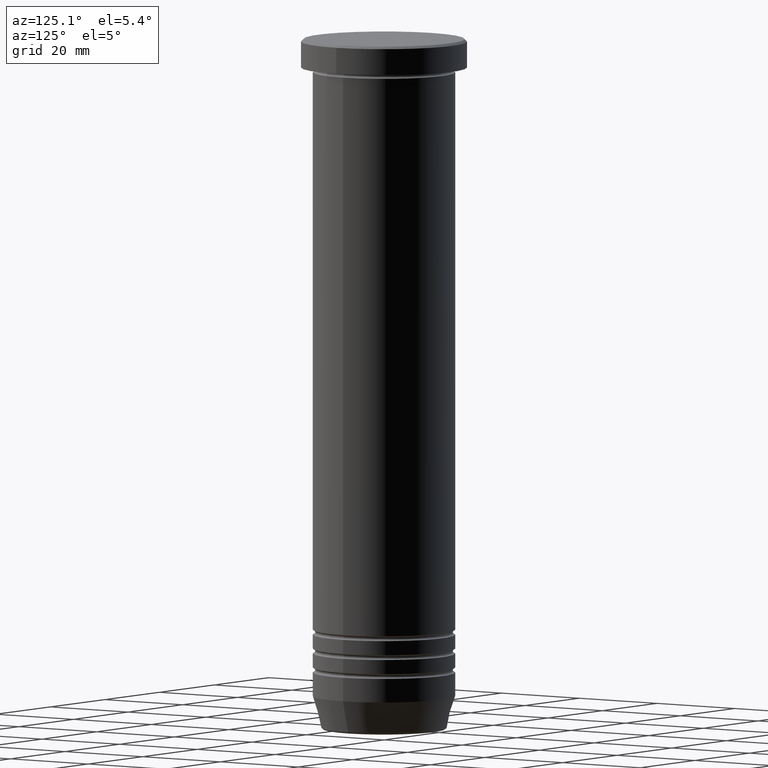
[diagram: clean part render]
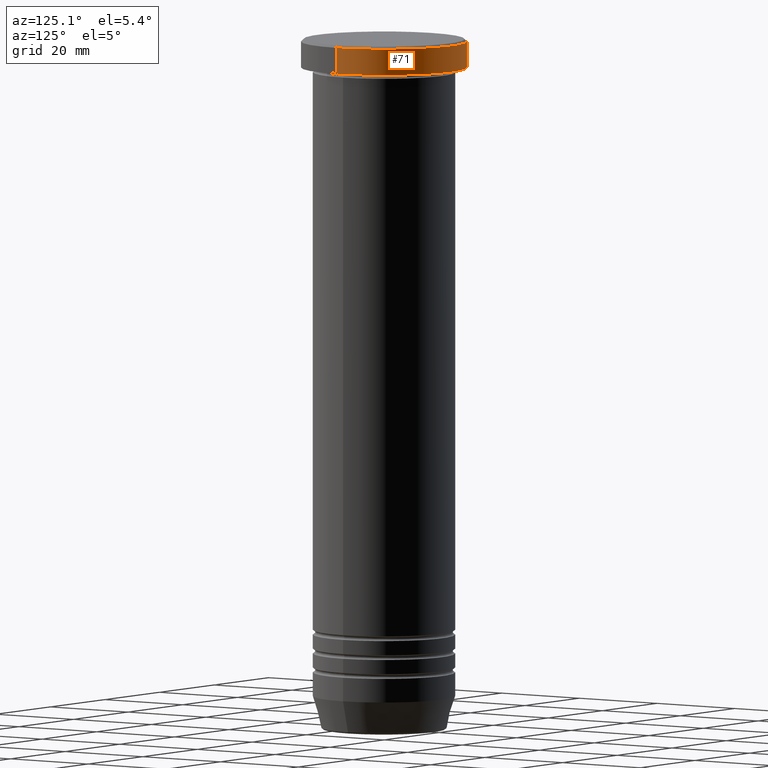
[diagram: same view with one face highlighted and labeled with its STEP entity id]
A machine part, auxiliary view. The second image highlights one B-rep face of the part: STEP entity #71.
In plain terms, the highlighted cylindrical surface (partial cylindrical patch) has radius 17.5 mm, axis along (-0, -0, 1).
Its self-contained STEP definition (entity closure, byte-faithful):
#22 = CARTESIAN_POINT ( 'NONE',  ( -17.50000000000000000, 2.143131898507868248E-15, 0.000000000000000000 ) ) ;
#71 = ADVANCED_FACE ( 'NONE', ( #669 ), #1103, .T. ) ;
#82 = CARTESIAN_POINT ( 'NONE',  ( 17.50000000000000000, 0.000000000000000000, -0.5000000000000073275 ) ) ;
#147 = DIRECTION ( 'NONE',  ( 1.000000000000000000, 0.000000000000000000, 0.000000000000000000 ) ) ;
#229 = VERTEX_POINT ( 'NONE', #380 ) ;
#274 = VERTEX_POINT ( 'NONE', #1081 ) ;
#313 = EDGE_CURVE ( 'NONE', #274, #1145, #826, .T. ) ;
#316 = CARTESIAN_POINT ( 'NONE',  ( 0.000000000000000000, 0.000000000000000000, -5.999999999999999112 ) ) ;
#327 = DIRECTION ( 'NONE',  ( 1.000000000000000000, 0.000000000000000000, 0.000000000000000000 ) ) ;
#363 = AXIS2_PLACEMENT_3D ( 'NONE', #589, #426, #147 ) ;
#364 = ORIENTED_EDGE ( 'NONE', *, *, #313, .T. ) ;
#380 = CARTESIAN_POINT ( 'NONE',  ( 17.50000000000000000, 0.000000000000000000, -5.999999999999999112 ) ) ;
#397 = ORIENTED_EDGE ( 'NONE', *, *, #692, .T. ) ;
#420 = VECTOR ( 'NONE', #834, 1000.000000000000000 ) ;
#426 = DIRECTION ( 'NONE',  ( -0.000000000000000000, -0.000000000000000000, 1.000000000000000000 ) ) ;
#455 = EDGE_CURVE ( 'NONE', #1145, #996, #568, .T. ) ;
#473 = VECTOR ( 'NONE', #738, 1000.000000000000000 ) ;
#530 = AXIS2_PLACEMENT_3D ( 'NONE', #316, #1099, #327 ) ;
#548 = AXIS2_PLACEMENT_3D ( 'NONE', #865, #960, #1035 ) ;
#568 = CIRCLE ( 'NONE', #548, 17.50000000000000000 ) ;
#587 = ORIENTED_EDGE ( 'NONE', *, *, #639, .F. ) ;
#589 = CARTESIAN_POINT ( 'NONE',  ( 0.000000000000000000, 0.000000000000000000, 0.000000000000000000 ) ) ;
#639 = EDGE_CURVE ( 'NONE', #229, #996, #816, .T. ) ;
#669 = FACE_OUTER_BOUND ( 'NONE', #732, .T. ) ;
#692 = EDGE_CURVE ( 'NONE', #229, #274, #1073, .T. ) ;
#732 = EDGE_LOOP ( 'NONE', ( #397, #364, #825, #587 ) ) ;
#738 = DIRECTION ( 'NONE',  ( -0.000000000000000000, -0.000000000000000000, 1.000000000000000000 ) ) ;
#748 = CARTESIAN_POINT ( 'NONE',  ( 17.50000000000000000, 0.000000000000000000, 0.000000000000000000 ) ) ;
#816 = LINE ( 'NONE', #748, #420 ) ;
#825 = ORIENTED_EDGE ( 'NONE', *, *, #455, .T. ) ;
#826 = LINE ( 'NONE', #22, #473 ) ;
#834 = DIRECTION ( 'NONE',  ( -0.000000000000000000, -0.000000000000000000, 1.000000000000000000 ) ) ;
#865 = CARTESIAN_POINT ( 'NONE',  ( 0.000000000000000000, 0.000000000000000000, -0.5000000000000073275 ) ) ;
#960 = DIRECTION ( 'NONE',  ( 0.000000000000000000, 0.000000000000000000, -1.000000000000000000 ) ) ;
#996 = VERTEX_POINT ( 'NONE', #82 ) ;
#1035 = DIRECTION ( 'NONE',  ( 1.000000000000000000, 0.000000000000000000, 0.000000000000000000 ) ) ;
#1040 = CARTESIAN_POINT ( 'NONE',  ( -17.50000000000000000, 2.143131898507868248E-15, -0.5000000000000073275 ) ) ;
#1073 = CIRCLE ( 'NONE', #530, 17.50000000000000000 ) ;
#1081 = CARTESIAN_POINT ( 'NONE',  ( -17.50000000000000000, 2.143131898507868248E-15, -5.999999999999999112 ) ) ;
#1099 = DIRECTION ( 'NONE',  ( -0.000000000000000000, -0.000000000000000000, 1.000000000000000000 ) ) ;
#1103 = CYLINDRICAL_SURFACE ( 'NONE', #363, 17.50000000000000000 ) ;
#1145 = VERTEX_POINT ( 'NONE', #1040 ) ;